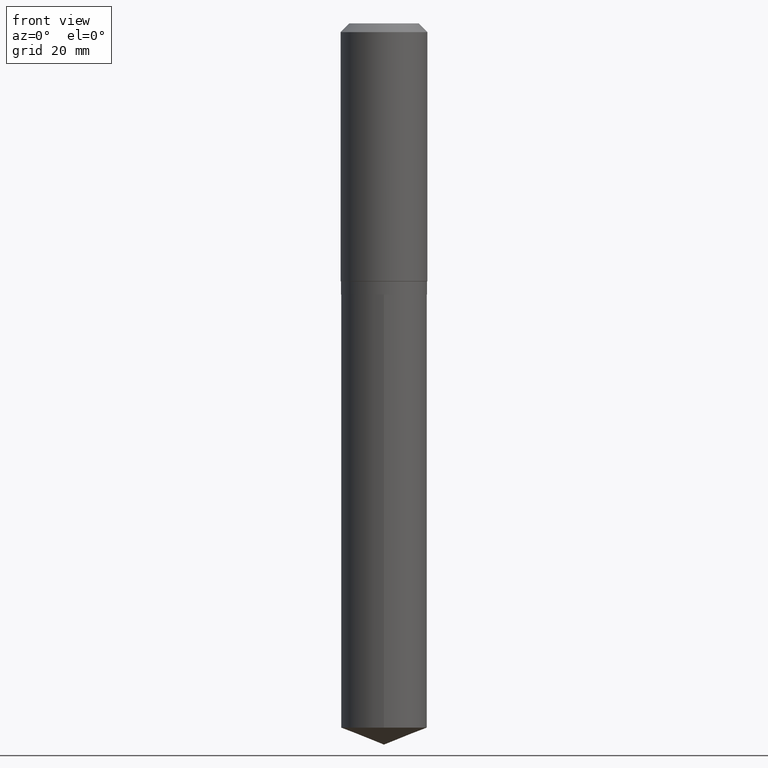
[diagram: clean part render]
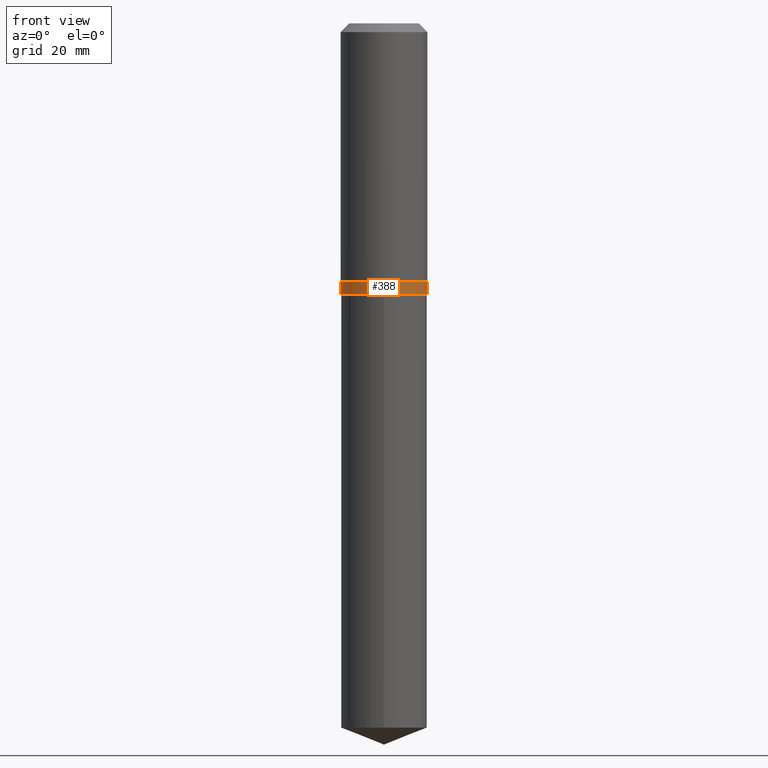
[diagram: same view with one face highlighted and labeled with its STEP entity id]
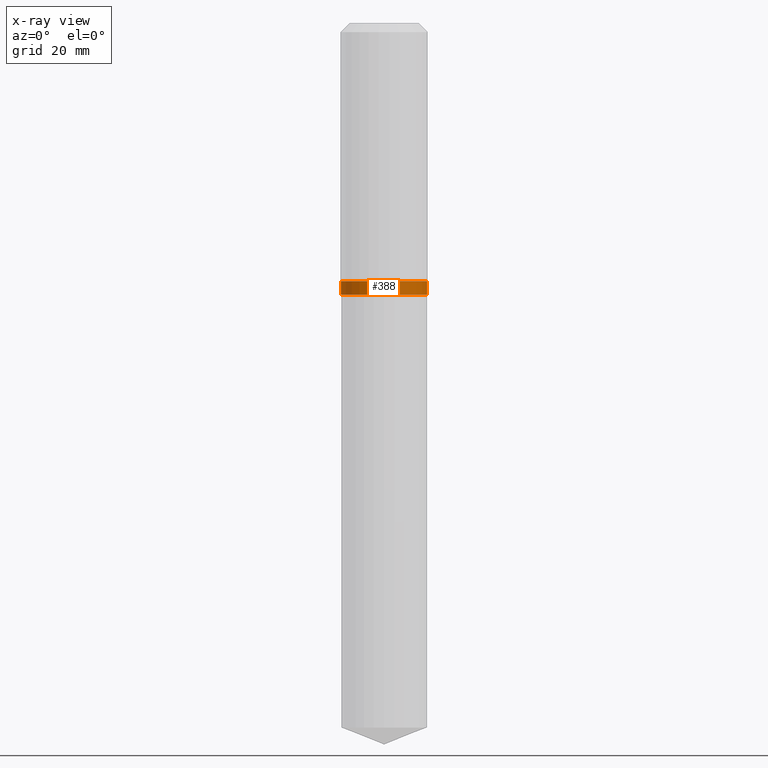
[diagram: x-ray of the same camera — body ghosted, the highlighted face saturated]
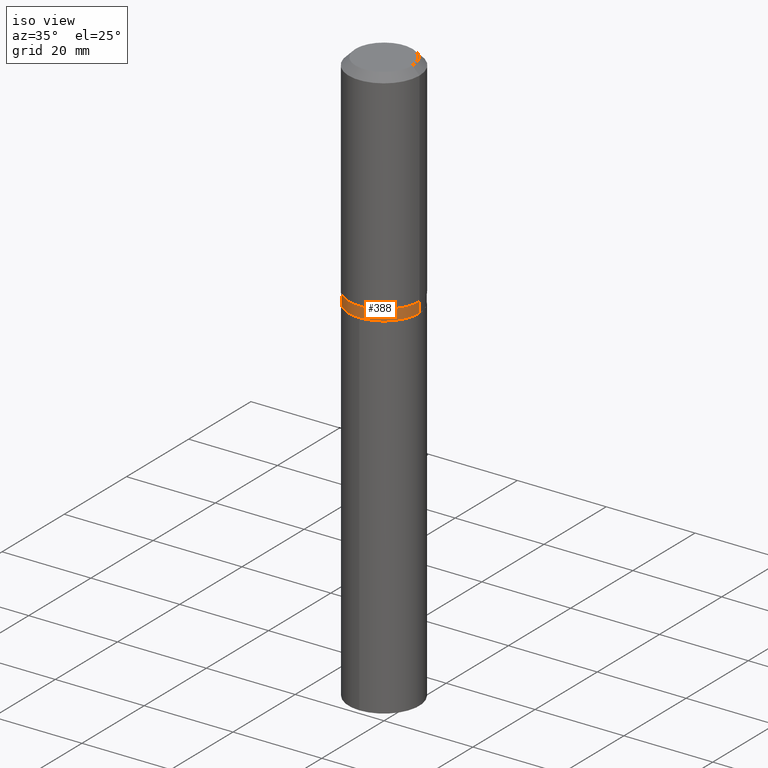
[diagram: same view with one face highlighted and labeled with its STEP entity id]
A machine part, front view. The second image highlights one B-rep face of the part: STEP entity #388.
The next image is the same camera in x-ray: the body ghosted, the highlighted face saturated — about 0% of this face is hidden behind the body in this view.
A second angle (iso view) of the same face is appended — the face is thin or edge-on in the first view.
In plain terms, the highlighted cylindrical surface (partial cylindrical patch) has radius 7.9375 mm, axis along (-0, 0, 1).
Its self-contained STEP definition (entity closure, byte-faithful):
#3 = DIRECTION ( 'NONE',  ( -2.445468806185136597E-29, 3.491481338843145583E-15, 1.000000000000000000 ) ) ;
#4 = CARTESIAN_POINT ( 'NONE',  ( -0.3125000000000000000, 2.220446049250313081E-15, -1.537167215704658232E-29 ) ) ;
#14 = VERTEX_POINT ( 'NONE', #248 ) ;
#23 = VERTEX_POINT ( 'NONE', #405 ) ;
#36 = CARTESIAN_POINT ( 'NONE',  ( 4.583297636552181403E-29, -6.543734325259821146E-15, -1.874199999999999422 ) ) ;
#41 = EDGE_CURVE ( 'NONE', #14, #23, #110, .T. ) ;
#43 = AXIS2_PLACEMENT_3D ( 'NONE', #346, #3, #126 ) ;
#44 = DIRECTION ( 'NONE',  ( 1.000000000000000000, -6.982962677686265133E-15, 0.000000000000000000 ) ) ;
#47 = ORIENTED_EDGE ( 'NONE', *, *, #367, .F. ) ;
#55 = VERTEX_POINT ( 'NONE', #323 ) ;
#75 = DIRECTION ( 'NONE',  ( -2.445468806185136877E-29, 3.491481338843145188E-15, 1.000000000000000000 ) ) ;
#105 = AXIS2_PLACEMENT_3D ( 'NONE', #36, #123, #44 ) ;
#110 = CIRCLE ( 'NONE', #122, 0.3125000000000000000 ) ;
#122 = AXIS2_PLACEMENT_3D ( 'NONE', #144, #245, #293 ) ;
#123 = DIRECTION ( 'NONE',  ( -2.445468806185136597E-29, 3.491481338843145583E-15, 1.000000000000000000 ) ) ;
#126 = DIRECTION ( 'NONE',  ( 1.000000000000000000, -6.982962677686266711E-15, 4.876176775795936353E-29 ) ) ;
#137 = CARTESIAN_POINT ( 'NONE',  ( 0.3125000000000000000, -8.725910162036779493E-15, -1.874199999999999422 ) ) ;
#140 = ORIENTED_EDGE ( 'NONE', *, *, #341, .F. ) ;
#144 = CARTESIAN_POINT ( 'NONE',  ( 4.812193516811110904E-29, -6.870536978575539236E-15, -1.967799999999999327 ) ) ;
#157 = CYLINDRICAL_SURFACE ( 'NONE', #43, 0.3125000000000000000 ) ;
#177 = VERTEX_POINT ( 'NONE', #137 ) ;
#189 = DIRECTION ( 'NONE',  ( -2.445468806185136877E-29, 3.491481338843145188E-15, 1.000000000000000000 ) ) ;
#191 = LINE ( 'NONE', #4, #456 ) ;
#206 = VECTOR ( 'NONE', #75, 39.37007874015748143 ) ;
#233 = CIRCLE ( 'NONE', #105, 0.3125000000000000000 ) ;
#245 = DIRECTION ( 'NONE',  ( -2.445468806185136597E-29, 3.491481338843145583E-15, 1.000000000000000000 ) ) ;
#248 = CARTESIAN_POINT ( 'NONE',  ( -0.3125000000000000000, -4.486689602667367110E-15, -1.967799999999999327 ) ) ;
#274 = LINE ( 'NONE', #464, #206 ) ;
#293 = DIRECTION ( 'NONE',  ( 1.000000000000000000, -6.982962677686269077E-15, 0.000000000000000000 ) ) ;
#322 = ORIENTED_EDGE ( 'NONE', *, *, #41, .T. ) ;
#323 = CARTESIAN_POINT ( 'NONE',  ( -0.3125000000000000000, -4.486689602667367110E-15, -1.874199999999999422 ) ) ;
#341 = EDGE_CURVE ( 'NONE', #14, #55, #191, .T. ) ;
#346 = CARTESIAN_POINT ( 'NONE',  ( 0.000000000000000000, 0.000000000000000000, 0.000000000000000000 ) ) ;
#367 = EDGE_CURVE ( 'NONE', #55, #177, #233, .T. ) ;
#388 = ADVANCED_FACE ( 'NONE', ( #420 ), #157, .T. ) ;
#405 = CARTESIAN_POINT ( 'NONE',  ( 0.3125000000000000000, -9.052712815352499160E-15, -1.967799999999999327 ) ) ;
#415 = EDGE_CURVE ( 'NONE', #23, #177, #274, .T. ) ;
#420 = FACE_OUTER_BOUND ( 'NONE', #472, .T. ) ;
#446 = ORIENTED_EDGE ( 'NONE', *, *, #415, .T. ) ;
#456 = VECTOR ( 'NONE', #189, 39.37007874015748143 ) ;
#464 = CARTESIAN_POINT ( 'NONE',  ( 0.3125000000000000000, -2.182175836776958347E-15, 1.523805242436230075E-29 ) ) ;
#472 = EDGE_LOOP ( 'NONE', ( #140, #322, #446, #47 ) ) ;